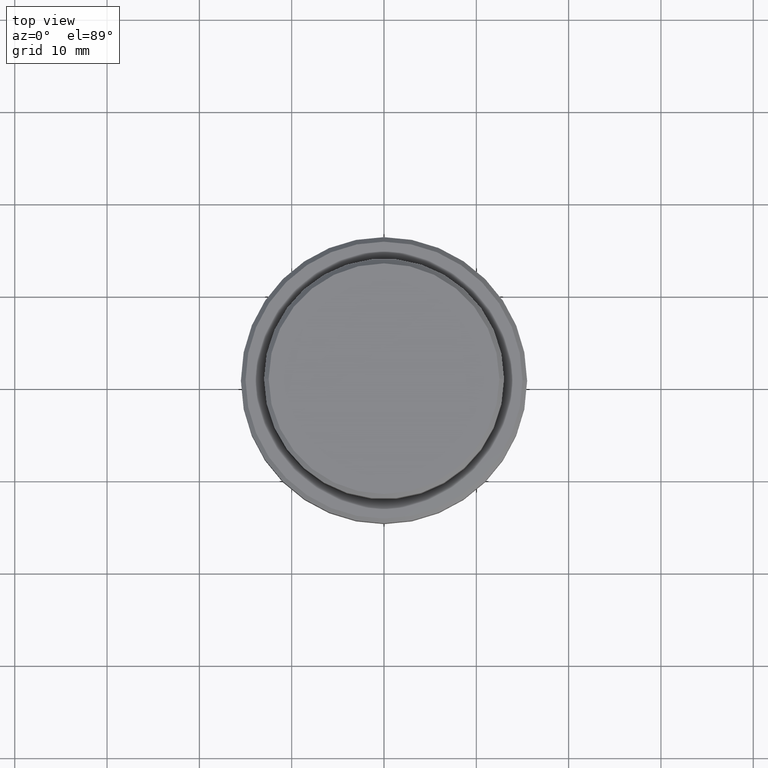
[diagram: clean part render]
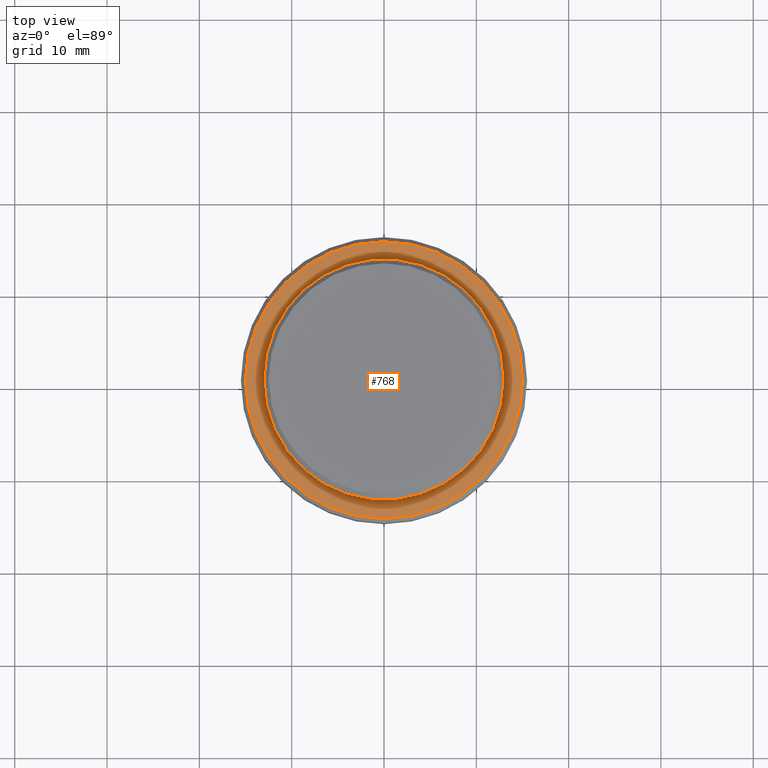
[diagram: same view with one face highlighted and labeled with its STEP entity id]
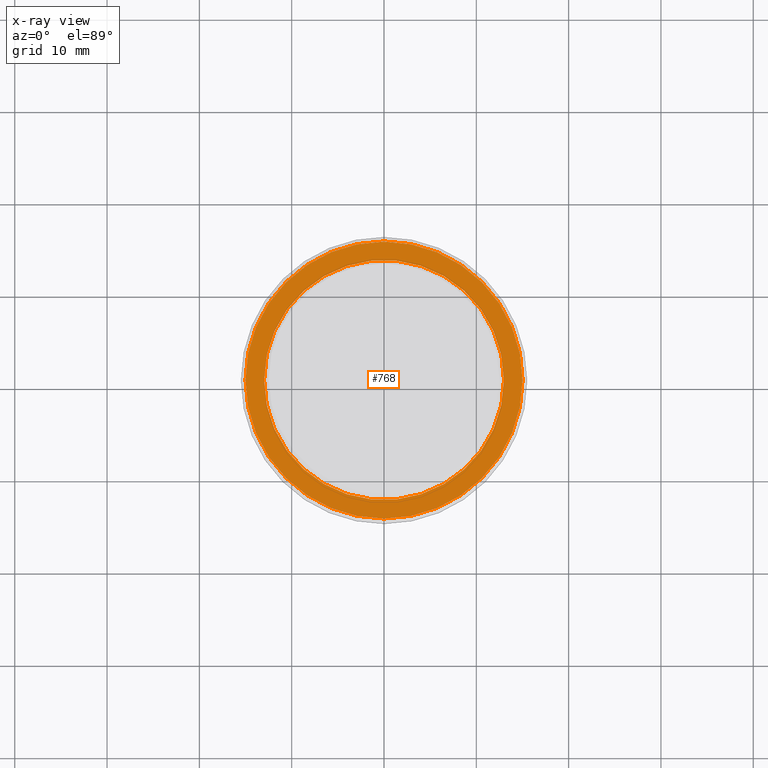
[diagram: x-ray of the same camera — body ghosted, the highlighted face saturated]
A machine part, top view. The second image highlights one B-rep face of the part: STEP entity #768.
The next image is the same camera in x-ray: the body ghosted, the highlighted face saturated — about 0% of this face is hidden behind the body in this view.
In plain terms, the highlighted planar face has unit normal (0, -0, 1).
Its self-contained STEP definition (entity closure, byte-faithful):
#7 = EDGE_CURVE ( 'NONE', #746, #373, #89, .T. ) ;
#22 = AXIS2_PLACEMENT_3D ( 'NONE', #350, #585, #1003 ) ;
#69 = EDGE_LOOP ( 'NONE', ( #171, #1075 ) ) ;
#84 = ORIENTED_EDGE ( 'NONE', *, *, #1147, .T. ) ;
#89 = CIRCLE ( 'NONE', #22, 15.00000000000000711 ) ;
#171 = ORIENTED_EDGE ( 'NONE', *, *, #7, .T. ) ;
#226 = DIRECTION ( 'NONE',  ( 0.000000000000000000, 0.000000000000000000, -1.000000000000000000 ) ) ;
#275 = FACE_OUTER_BOUND ( 'NONE', #69, .T. ) ;
#308 = EDGE_CURVE ( 'NONE', #373, #746, #707, .T. ) ;
#316 = CARTESIAN_POINT ( 'NONE',  ( 0.000000000000000000, 0.000000000000000000, -9.000000000000000000 ) ) ;
#320 = ORIENTED_EDGE ( 'NONE', *, *, #492, .T. ) ;
#350 = CARTESIAN_POINT ( 'NONE',  ( 0.000000000000000000, 0.000000000000000000, -9.000000000000000000 ) ) ;
#373 = VERTEX_POINT ( 'NONE', #936 ) ;
#382 = CARTESIAN_POINT ( 'NONE',  ( 0.000000000000000000, 12.49999999999999289, -9.000000000000000000 ) ) ;
#461 = CARTESIAN_POINT ( 'NONE',  ( -12.99999999999999467, 1.592040838891558504E-15, -9.000000000000000000 ) ) ;
#492 = EDGE_CURVE ( 'NONE', #1210, #1131, #816, .T. ) ;
#511 = CARTESIAN_POINT ( 'NONE',  ( 12.99999999999999467, 0.000000000000000000, -9.000000000000000000 ) ) ;
#516 = DIRECTION ( 'NONE',  ( 1.000000000000000000, 0.000000000000000000, 0.000000000000000000 ) ) ;
#585 = DIRECTION ( 'NONE',  ( -0.000000000000000000, -0.000000000000000000, 1.000000000000000000 ) ) ;
#606 = EDGE_LOOP ( 'NONE', ( #84, #320 ) ) ;
#618 = DIRECTION ( 'NONE',  ( 1.000000000000000000, 0.000000000000000000, 0.000000000000000000 ) ) ;
#629 = DIRECTION ( 'NONE',  ( 0.000000000000000000, 0.000000000000000000, -1.000000000000000000 ) ) ;
#658 = AXIS2_PLACEMENT_3D ( 'NONE', #382, #1256, #618 ) ;
#663 = DIRECTION ( 'NONE',  ( 1.000000000000000000, 0.000000000000000000, 0.000000000000000000 ) ) ;
#707 = CIRCLE ( 'NONE', #1393, 15.00000000000000711 ) ;
#726 = DIRECTION ( 'NONE',  ( 1.000000000000000000, 0.000000000000000000, 0.000000000000000000 ) ) ;
#746 = VERTEX_POINT ( 'NONE', #1135 ) ;
#768 = ADVANCED_FACE ( 'NONE', ( #275, #932 ), #1261, .T. ) ;
#770 = CARTESIAN_POINT ( 'NONE',  ( 0.000000000000000000, 0.000000000000000000, -9.000000000000000000 ) ) ;
#816 = CIRCLE ( 'NONE', #1397, 12.99999999999999467 ) ;
#831 = CARTESIAN_POINT ( 'NONE',  ( 0.000000000000000000, 0.000000000000000000, -9.000000000000000000 ) ) ;
#932 = FACE_BOUND ( 'NONE', #606, .T. ) ;
#936 = CARTESIAN_POINT ( 'NONE',  ( 15.00000000000000711, 1.867586368699714165E-15, -9.000000000000000000 ) ) ;
#963 = DIRECTION ( 'NONE',  ( -0.000000000000000000, -0.000000000000000000, 1.000000000000000000 ) ) ;
#1003 = DIRECTION ( 'NONE',  ( 1.000000000000000000, 0.000000000000000000, 0.000000000000000000 ) ) ;
#1075 = ORIENTED_EDGE ( 'NONE', *, *, #308, .T. ) ;
#1106 = AXIS2_PLACEMENT_3D ( 'NONE', #831, #629, #726 ) ;
#1131 = VERTEX_POINT ( 'NONE', #511 ) ;
#1135 = CARTESIAN_POINT ( 'NONE',  ( -15.00000000000000711, 0.000000000000000000, -9.000000000000000000 ) ) ;
#1147 = EDGE_CURVE ( 'NONE', #1131, #1210, #1309, .T. ) ;
#1210 = VERTEX_POINT ( 'NONE', #461 ) ;
#1256 = DIRECTION ( 'NONE',  ( 0.000000000000000000, -0.000000000000000000, 1.000000000000000000 ) ) ;
#1261 = PLANE ( 'NONE',  #658 ) ;
#1309 = CIRCLE ( 'NONE', #1106, 12.99999999999999467 ) ;
#1393 = AXIS2_PLACEMENT_3D ( 'NONE', #316, #963, #516 ) ;
#1397 = AXIS2_PLACEMENT_3D ( 'NONE', #770, #226, #663 ) ;